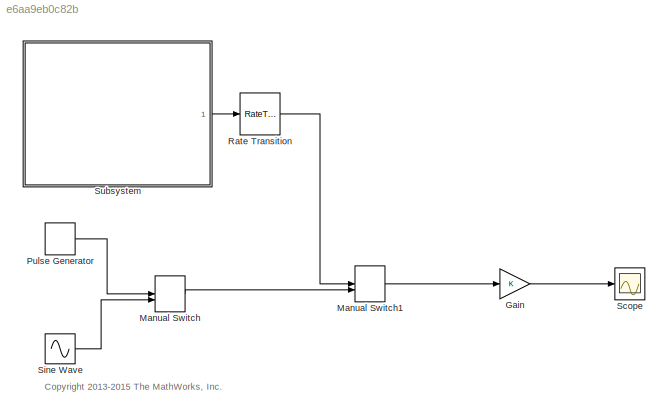
MODEL slx_e6aa9eb0c82b
KIND model
CONFIG AbsTol = auto
CONFIG EnableMultiTasking = on
CONFIG FixedStep = 0.004
CONFIG MaxStep = auto
CONFIG MinStep = auto
CONFIG RelTol = 1e-3
CONFIG SampleTimeConstraint = Unconstrained
CONFIG Solver = FixedStepDiscrete
CONFIG SolverName = FixedStepDiscrete
CONFIG StartTime = 0.0
CONFIG StopTime = inf
BLOCK [Gain] Gain
  AttributesFormatString = SampleTime=%<SampleTime>
  OutDataTypeStr = Inherit: Inherit via internal rule
  ParamDataTypeStr = Inherit: Inherit via internal rule
  SaturateOnIntegerOverflow = off
BLOCK [ManualSwitch] Manual Switch
BLOCK [ManualSwitch] Manual Switch1
  AttributesFormatString = SampleTime=%<SampleTime>
  CurrentSetting = 0
BLOCK [DiscretePulseGenerator] Pulse Generator
  Amplitude = 3
  AttributesFormatString = SampleTime=%<SampleTime>
  Period = 10
  Ports = [0, 1]
  PulseWidth = 5
  SampleTime = 0.032
BLOCK [RateTransition] Rate Transition
BLOCK [Scope] Scope
  AttributesFormatString = SampleTime=%<SampleTime>
  ExtModeLoggingTrig = on
  Floating = off
  NumInputPorts = 1
  Ports = [1]
  ScopeSpecificationString = Simulink.scopes.TimeScopeBlockCfg('CurrentConfiguration', extmgr.ConfigurationSet(extmgr.Configuration('Core','General UI',true,'FigureColor',[0.156862745098039 0.156862745098039 0.156862745098039]),extmgr.Configuration('Core','Source UI',true),extmgr.Configuration('Sources','WiredSimulink',true,'DataLoggingSaveFormat','StructureWithTime','DataLoggingLimitDataPoints',true,'DataLoggingDecimation','...<+2791ch>
BLOCK [Sin] Sine Wave
  Amplitude = 2
  AttributesFormatString = SampleTime=%<SampleTime>
  Ports = [0, 1]
  SampleTime = 0.032
  Samples = 20
  SineType = Sample based
BLOCK [ModelReference] Subsystem
  AttributesFormatString = SimulationMode=%<SimulationMode>
  ModelNameDialog = F302R8_ADC_ch1_r1.slx
  ModelReferenceVersion = 1.105
  Ports = [0, 1]
ANNOTATION (root): <copyright redacted>
LINE Gain:1 -> Scope:1
LINE Manual Switch1:1 -> Gain:1
LINE Manual Switch:1 -> Manual Switch1:2
LINE Pulse Generator:1 -> Manual Switch:1
LINE Rate Transition:1 -> Manual Switch1:1
LINE Sine Wave:1 -> Manual Switch:2
LINE Subsystem:1 -> Rate Transition:1
